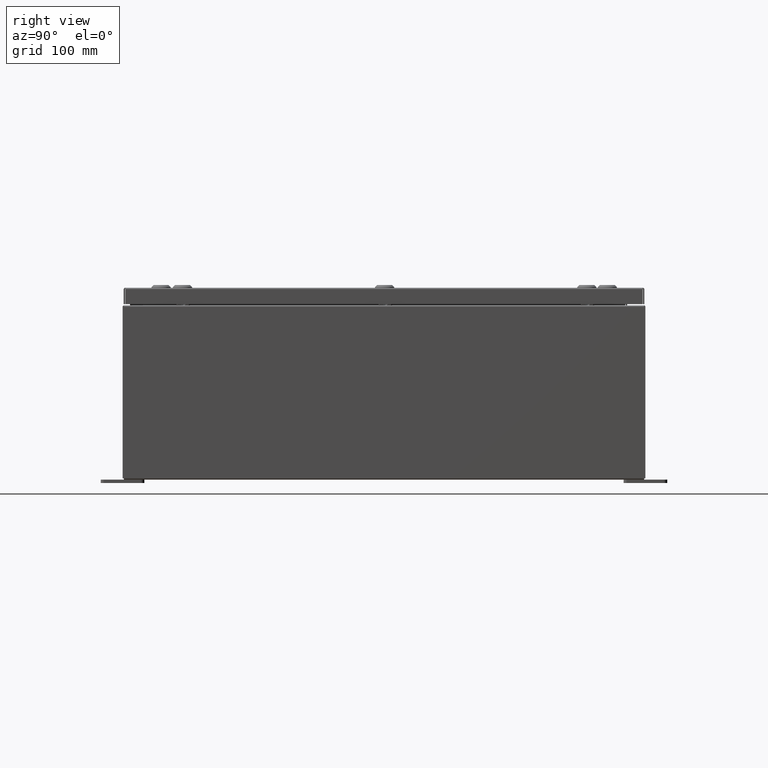
[diagram: clean part render]
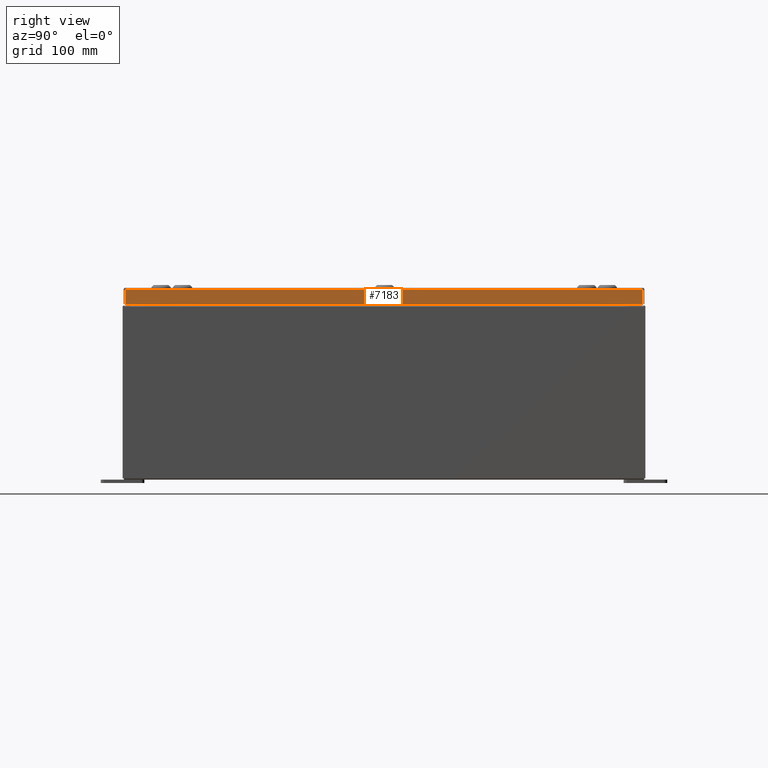
[diagram: same view with one face highlighted and labeled with its STEP entity id]
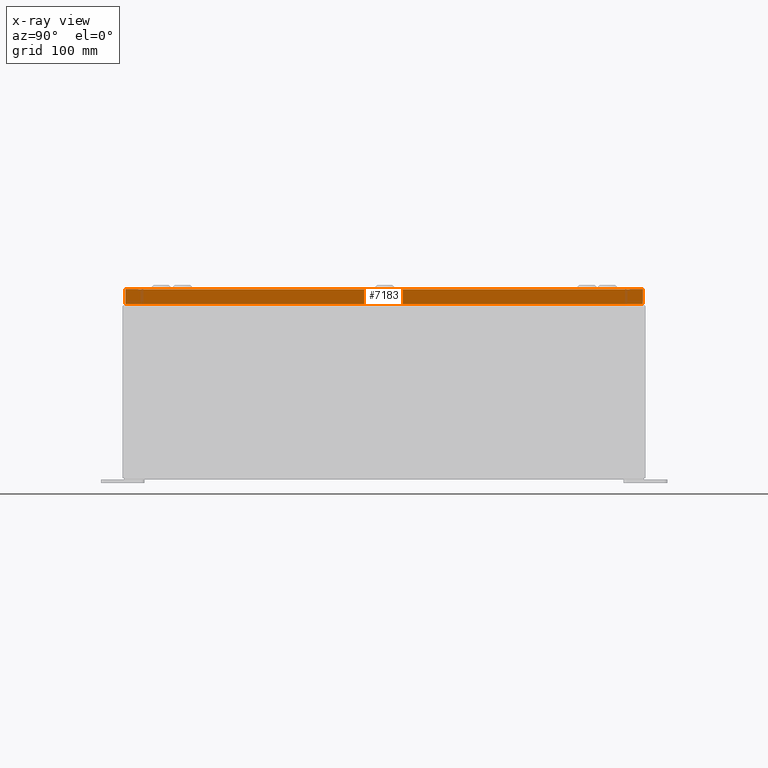
[diagram: x-ray of the same camera — body ghosted, the highlighted face saturated]
A machine part, right view. The second image highlights one B-rep face of the part: STEP entity #7183.
The next image is the same camera in x-ray: the body ghosted, the highlighted face saturated — about 0% of this face is hidden behind the body in this view.
In plain terms, the highlighted planar face has unit normal (1, 0, 0).
Its self-contained STEP definition (entity closure, byte-faithful):
#917 = CARTESIAN_POINT ( 'NONE',  ( 11.93750000000000200, 14.84865786437627800, -0.9376999999999997600 ) ) ;
#1346 = VERTEX_POINT ( 'NONE', #32327 ) ;
#2087 = LINE ( 'NONE', #44732, #51714 ) ;
#2381 = CARTESIAN_POINT ( 'NONE',  ( 11.93750000000000000, 14.84865786437626900, -0.08770000000000008300 ) ) ;
#3788 = CARTESIAN_POINT ( 'NONE',  ( 11.93750000000000000, -14.84865786437626400, -0.07469999999999980800 ) ) ;
#7183 = ADVANCED_FACE ( 'NONE', ( #20801 ), #46421, .T. ) ;
#9008 = VECTOR ( 'NONE', #61725, 39.37007874015748100 ) ;
#10551 = LINE ( 'NONE', #51749, #9008 ) ;
#11435 = VECTOR ( 'NONE', #57186, 39.37007874015748100 ) ;
#15017 = DIRECTION ( 'NONE',  ( 0.0000000000000000000, -1.000000000000000000, 0.0000000000000000000 ) ) ;
#15424 = AXIS2_PLACEMENT_3D ( 'NONE', #46636, #46289, #46354 ) ;
#16087 = EDGE_CURVE ( 'NONE', #31876, #30616, #10551, .T. ) ;
#17330 = EDGE_CURVE ( 'NONE', #1346, #30616, #17468, .T. ) ;
#17468 = LINE ( 'NONE', #3788, #55559 ) ;
#18669 = DIRECTION ( 'NONE',  ( -2.532419924601866100E-015, -6.982962677686265900E-015, 1.000000000000000000 ) ) ;
#20801 = FACE_OUTER_BOUND ( 'NONE', #27265, .T. ) ;
#23168 = ORIENTED_EDGE ( 'NONE', *, *, #16087, .T. ) ;
#25050 = ORIENTED_EDGE ( 'NONE', *, *, #32345, .F. ) ;
#27265 = EDGE_LOOP ( 'NONE', ( #61542, #25050, #33984, #23168 ) ) ;
#30616 = VERTEX_POINT ( 'NONE', #55350 ) ;
#31876 = VERTEX_POINT ( 'NONE', #2381 ) ;
#32327 = CARTESIAN_POINT ( 'NONE',  ( 11.93750000000000200, -14.84865786437625900, -0.9376999999999997600 ) ) ;
#32345 = EDGE_CURVE ( 'NONE', #35441, #1346, #2087, .T. ) ;
#32389 = CARTESIAN_POINT ( 'NONE',  ( 11.93750000000000000, 14.84865786437627100, 1.341792001866185200E-013 ) ) ;
#33984 = ORIENTED_EDGE ( 'NONE', *, *, #38769, .T. ) ;
#35441 = VERTEX_POINT ( 'NONE', #917 ) ;
#38769 = EDGE_CURVE ( 'NONE', #35441, #31876, #51042, .T. ) ;
#44732 = CARTESIAN_POINT ( 'NONE',  ( 11.93750000000000200, -14.93749999999999500, -0.9376999999999997600 ) ) ;
#46289 = DIRECTION ( 'NONE',  ( 1.000000000000000000, 0.0000000000000000000, 2.532419924601866100E-015 ) ) ;
#46354 = DIRECTION ( 'NONE',  ( 2.532419924601866100E-015, 0.0000000000000000000, -1.000000000000000000 ) ) ;
#46421 = PLANE ( 'NONE',  #15424 ) ;
#46636 = CARTESIAN_POINT ( 'NONE',  ( 11.93750000000000000, 0.0000000000000000000, 3.049157650594635900E-014 ) ) ;
#51042 = LINE ( 'NONE', #32389, #11435 ) ;
#51714 = VECTOR ( 'NONE', #15017, 39.37007874015748100 ) ;
#51749 = CARTESIAN_POINT ( 'NONE',  ( 11.93750000000000000, 0.0000000000000000000, -0.08770000000000008300 ) ) ;
#55350 = CARTESIAN_POINT ( 'NONE',  ( 11.93750000000000000, -14.84865786437626400, -0.08770000000000008300 ) ) ;
#55559 = VECTOR ( 'NONE', #18669, 39.37007874015748100 ) ;
#57186 = DIRECTION ( 'NONE',  ( -2.532419924601866100E-015, -6.982962677686265900E-015, 1.000000000000000000 ) ) ;
#61542 = ORIENTED_EDGE ( 'NONE', *, *, #17330, .F. ) ;
#61725 = DIRECTION ( 'NONE',  ( 0.0000000000000000000, -1.000000000000000000, 0.0000000000000000000 ) ) ;